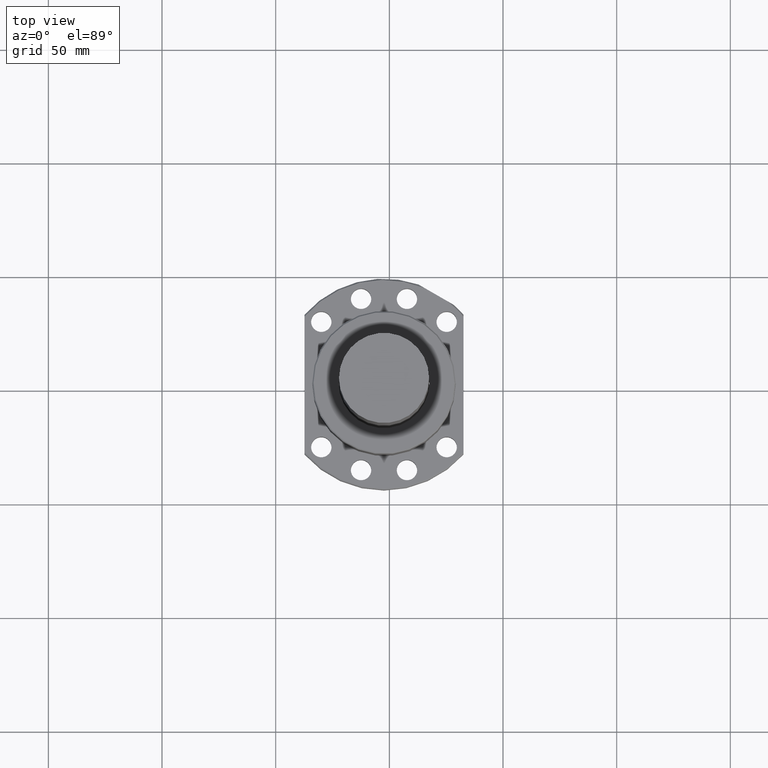
[diagram: clean part render]
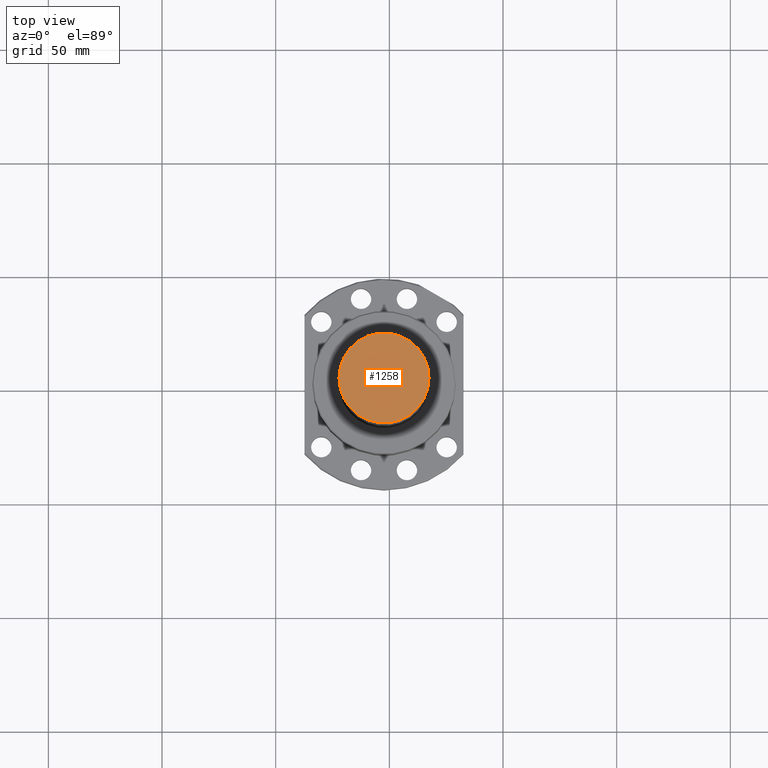
[diagram: same view with one face highlighted and labeled with its STEP entity id]
A machine part, top view. The second image highlights one B-rep face of the part: STEP entity #1258.
In plain terms, the highlighted planar face has unit normal (0, 0, 1).
Its self-contained STEP definition (entity closure, byte-faithful):
#225 = EDGE_LOOP ( 'NONE', ( #1283, #1799 ) ) ;
#279 = VERTEX_POINT ( 'NONE', #1527 ) ;
#658 = DIRECTION ( 'NONE',  ( 1.000000000000000000, 0.0000000000000000000, 0.0000000000000000000 ) ) ;
#661 = DIRECTION ( 'NONE',  ( 0.0000000000000000000, 0.0000000000000000000, 1.000000000000000000 ) ) ;
#663 = CARTESIAN_POINT ( 'NONE',  ( 0.0000000000000000000, 0.0000000000000000000, 0.0000000000000000000 ) ) ;
#724 = CARTESIAN_POINT ( 'NONE',  ( -19.80000000000000100, 2.424800662311759400E-015, 0.0000000000000000000 ) ) ;
#816 = DIRECTION ( 'NONE',  ( 1.000000000000000000, 0.0000000000000000000, 0.0000000000000000000 ) ) ;
#818 = DIRECTION ( 'NONE',  ( 0.0000000000000000000, 0.0000000000000000000, 1.000000000000000000 ) ) ;
#821 = CARTESIAN_POINT ( 'NONE',  ( 0.0000000000000000000, 0.0000000000000000000, 0.0000000000000000000 ) ) ;
#940 = DIRECTION ( 'NONE',  ( 1.000000000000000000, 0.0000000000000000000, 0.0000000000000000000 ) ) ;
#941 = DIRECTION ( 'NONE',  ( 0.0000000000000000000, 0.0000000000000000000, 1.000000000000000000 ) ) ;
#943 = CARTESIAN_POINT ( 'NONE',  ( -20.03760000000000100, -20.03760000000000100, 0.0000000000000000000 ) ) ;
#944 = PLANE ( 'NONE',  #1621 ) ;
#1133 = CIRCLE ( 'NONE', #1276, 19.80000000000000100 ) ;
#1258 = ADVANCED_FACE ( 'NONE', ( #1636 ), #944, .T. ) ;
#1276 = AXIS2_PLACEMENT_3D ( 'NONE', #663, #661, #658 ) ;
#1283 = ORIENTED_EDGE ( 'NONE', *, *, #1463, .T. ) ;
#1463 = EDGE_CURVE ( 'NONE', #279, #1607, #1966, .T. ) ;
#1527 = CARTESIAN_POINT ( 'NONE',  ( 19.80000000000000100, 0.0000000000000000000, 0.0000000000000000000 ) ) ;
#1539 = AXIS2_PLACEMENT_3D ( 'NONE', #821, #818, #816 ) ;
#1607 = VERTEX_POINT ( 'NONE', #724 ) ;
#1621 = AXIS2_PLACEMENT_3D ( 'NONE', #943, #941, #940 ) ;
#1636 = FACE_OUTER_BOUND ( 'NONE', #225, .T. ) ;
#1668 = EDGE_CURVE ( 'NONE', #1607, #279, #1133, .T. ) ;
#1799 = ORIENTED_EDGE ( 'NONE', *, *, #1668, .T. ) ;
#1966 = CIRCLE ( 'NONE', #1539, 19.80000000000000100 ) ;